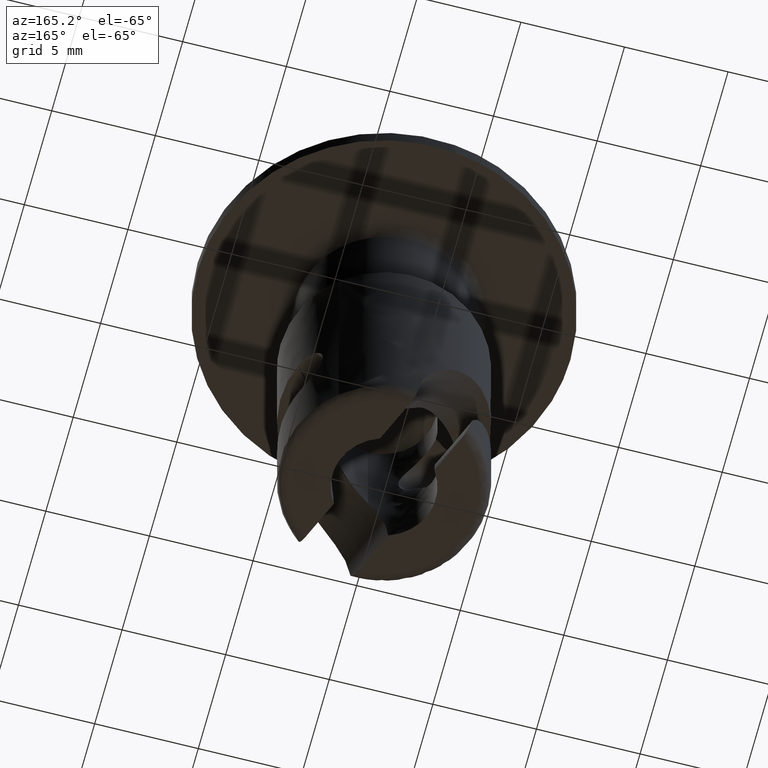
[diagram: clean part render]
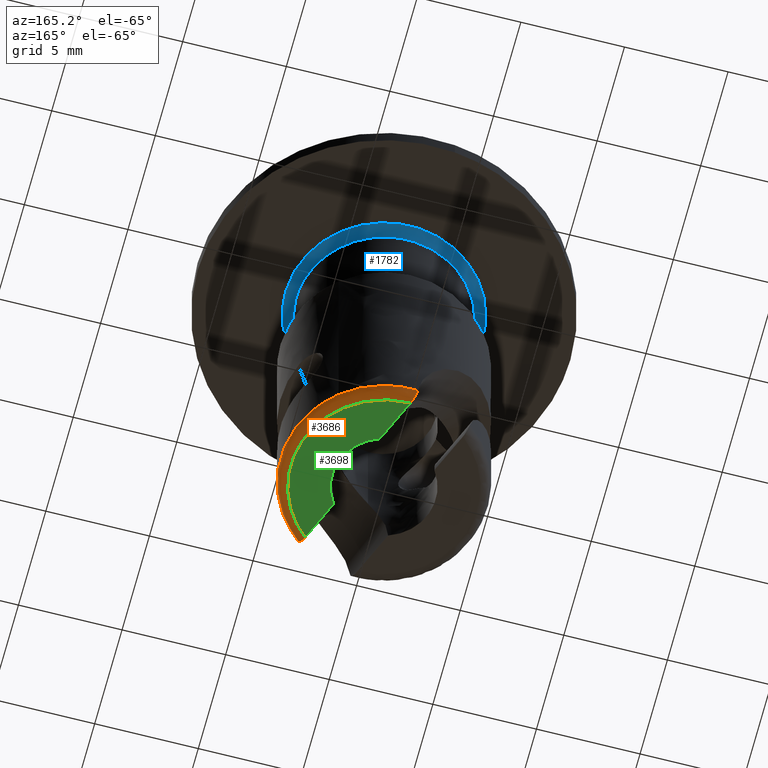
[diagram: same view with three faces highlighted in distinct colors, each labeled with its STEP entity id]
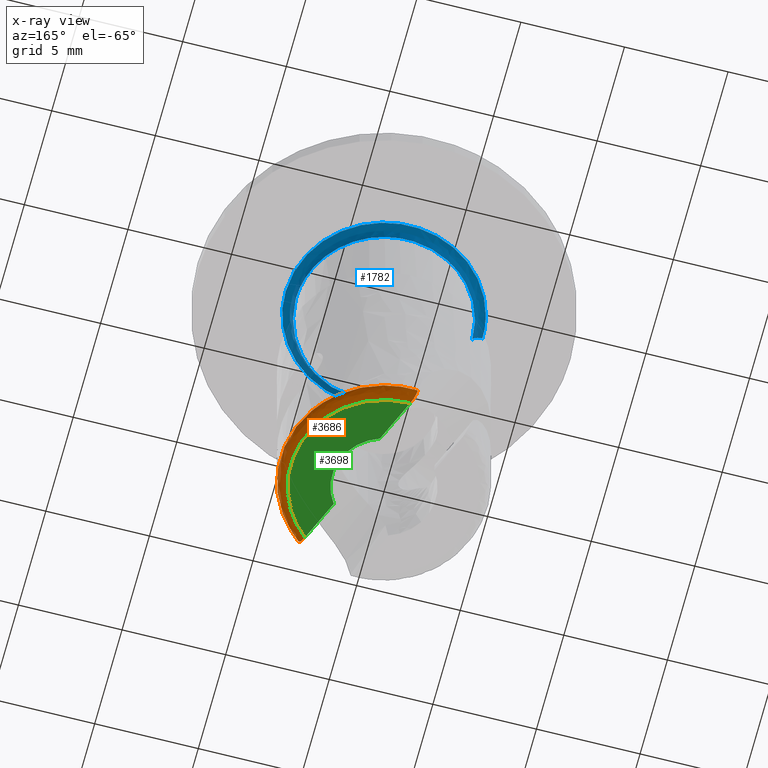
[diagram: x-ray of the same camera — body ghosted, the three highlighted faces saturated]
A machine part, auxiliary view with three faces highlighted in distinct colors.
The next image is the same camera in x-ray (body ghosted, the three faces saturated) — at least one of them is partly hidden behind the body in this view.
Their STEP definitions:

[orange] entity #3686 — the highlighted face is a freeform B-spline surface patch.
#984=CARTESIAN_POINT('',(3.124494516365015,-3.903528406096845,-18.500000000000000));
#985=VERTEX_POINT('',#984);
#1001=CARTESIAN_POINT('',(3.441768623521589,-3.626875892846059,-18.500000000000000));
#1002=VERTEX_POINT('',#1001);
#1003=CARTESIAN_POINT('',(3.124494516365013,-3.903528406096843,-18.500000000000000));
#1004=CARTESIAN_POINT('',(3.288959588975710,-3.771885911398178,-18.500000000000004));
#1005=CARTESIAN_POINT('',(3.441768623521589,-3.626875892846058,-18.500000000000000));
#1013=(BOUNDED_CURVE()B_SPLINE_CURVE(2,(#1003,#1004,#1005),.UNSPECIFIED.,.F.,.U.)B_SPLINE_CURVE_WITH_KNOTS((3,3),(0.0,0.035159461811419),.UNSPECIFIED.)CURVE()GEOMETRIC_REPRESENTATION_ITEM()RATIONAL_B_SPLINE_CURVE((1.0,0.986404531614961,0.974721100635891))REPRESENTATION_ITEM(''));
#1014=EDGE_CURVE('',#985,#1002,#1013,.T.);
#1046=CARTESIAN_POINT('',(3.205213124924041,3.837526393891474,-18.500000000000000));
#1047=VERTEX_POINT('',#1046);
#1048=CARTESIAN_POINT('',(-0.313195308170528,4.990181229067730,-18.500000000000000));
#1049=VERTEX_POINT('',#1048);
#1050=CARTESIAN_POINT('',(3.205213124924040,3.837526393891474,-18.500000000000004));
#1051=CARTESIAN_POINT('',(1.675712964474658,5.115009709393367,-18.500000000000000));
#1052=CARTESIAN_POINT('',(-0.313195308170527,4.990181229067735,-18.500000000000000));
#1060=(BOUNDED_CURVE()B_SPLINE_CURVE(2,(#1050,#1051,#1052),.UNSPECIFIED.,.F.,.U.)B_SPLINE_CURVE_WITH_KNOTS((3,3),(0.701706621458012,1.0),.UNSPECIFIED.)CURVE()GEOMETRIC_REPRESENTATION_ITEM()RATIONAL_B_SPLINE_CURVE((0.906937285704358,0.884655851128052,1.0))REPRESENTATION_ITEM(''));
#1061=EDGE_CURVE('',#1047,#1049,#1060,.T.);
#1351=CARTESIAN_POINT('',(3.441768623521589,-3.626875892846058,-18.500000000000000));
#1352=CARTESIAN_POINT('',(5.871267993779972,-1.321372492551336,-18.499999999999996));
#1353=CARTESIAN_POINT('',(4.663729042102849,1.802673409646474,-18.500000000000000));
#1354=CARTESIAN_POINT('',(4.197570591971286,3.008680382660280,-18.499999999999996));
#1355=CARTESIAN_POINT('',(3.205213124924040,3.837526393891474,-18.500000000000004));
#1363=(BOUNDED_CURVE()B_SPLINE_CURVE(2,(#1351,#1352,#1353,#1354,#1355),.UNSPECIFIED.,.F.,.U.)B_SPLINE_CURVE_WITH_KNOTS((3,2,3),(0.035159461811419,0.500000000000000,0.701706621458012),.UNSPECIFIED.)CURVE()GEOMETRIC_REPRESENTATION_ITEM()RATIONAL_B_SPLINE_CURVE((0.974721100635891,0.820255359000559,1.0,0.922004039487468,0.906937285704358))REPRESENTATION_ITEM(''));
#1364=EDGE_CURVE('',#1002,#1047,#1363,.T.);
#2483=CARTESIAN_POINT('',(-0.085926746010043,4.499179546797280,-19.0));
#2484=VERTEX_POINT('',#2483);
#2485=CARTESIAN_POINT('',(-0.085926746010043,4.499179546797280,-19.0));
#2486=CARTESIAN_POINT('',(-0.099194621547314,4.530436716631356,-19.000000000000028));
#2487=CARTESIAN_POINT('',(-0.112354986435309,4.561453441815378,-18.997048296491059));
#2488=CARTESIAN_POINT('',(-0.138478234853059,4.622989313843970,-18.985146117599680));
#2489=CARTESIAN_POINT('',(-0.151521887195154,4.653697536132278,-18.976062718069979));
#2490=CARTESIAN_POINT('',(-0.176424438465574,4.712117838628803,-18.952348155842440));
#2491=CARTESIAN_POINT('',(-0.188406280573396,4.740120921867622,-18.937701950207629));
#2492=CARTESIAN_POINT('',(-0.211493051025689,4.793580452211522,-18.902621870960481));
#2493=CARTESIAN_POINT('',(-0.222611230146577,4.819056779945024,-18.882055057046180));
#2494=CARTESIAN_POINT('',(-0.243052632517192,4.865004369988509,-18.836712412651320));
#2495=CARTESIAN_POINT('',(-0.252513708333434,4.885799521853064,-18.811761190461851));
#2496=CARTESIAN_POINT('',(-0.265603846995205,4.913513731192731,-18.770739657252069));
#2497=CARTESIAN_POINT('',(-0.269787602084606,4.922175461668958,-18.756425650271002));
#2498=CARTESIAN_POINT('',(-0.277595678438668,4.937892654581577,-18.727244305891318));
#2499=CARTESIAN_POINT('',(-0.281246845126907,4.945006087934380,-18.712299310660288));
#2500=CARTESIAN_POINT('',(-0.291468348587917,4.964122229638018,-18.666411702871020));
#2501=CARTESIAN_POINT('',(-0.297337216187183,4.973954245740749,-18.634276952589730));
#2502=CARTESIAN_POINT('',(-0.306985499787269,4.987129683534116,-18.567659002003388));
#2503=CARTESIAN_POINT('',(-0.310656887699815,4.990340546203750,-18.534002196224570));
#2504=CARTESIAN_POINT('',(-0.313195308170528,4.990181229067730,-18.500000000000000));
#2505=B_SPLINE_CURVE_WITH_KNOTS('',3,(#2485,#2486,#2487,#2488,#2489,#2490,#2491,#2492,#2493,#2494,#2495,#2496,#2497,#2498,#2499,#2500,#2501,#2502,#2503,#2504),.UNSPECIFIED.,.F.,.U.,(4,2,2,2,2,2,2,2,2,4),(0.0,0.124999999999999,0.249999999999998,0.374999999999997,0.499999999999996,0.624999999999995,0.687500000000000,0.750000000000005,0.875000000000002,1.0),.UNSPECIFIED.);
#2506=EDGE_CURVE('',#2484,#1049,#2505,.T.);
#3300=CARTESIAN_POINT('',(2.896918637067870,-3.443524697457790,-18.999991999999999));
#3301=VERTEX_POINT('',#3300);
#3307=CARTESIAN_POINT('',(2.896918637067870,-3.443524697457790,-18.999991999999999));
#3308=CARTESIAN_POINT('',(2.909889189152438,-3.474081414632380,-18.999992265028219));
#3309=CARTESIAN_POINT('',(2.923021818620198,-3.505054243283523,-18.996923436703231));
#3310=CARTESIAN_POINT('',(2.948669394379714,-3.565505339520925,-18.984704274738331));
#3311=CARTESIAN_POINT('',(2.961139402139915,-3.594877037636146,-18.975653899472690));
#3312=CARTESIAN_POINT('',(2.985478925744812,-3.651857335019900,-18.951642997388500));
#3313=CARTESIAN_POINT('',(2.997464634078880,-3.679730213676146,-18.936460478975540));
#3314=CARTESIAN_POINT('',(3.020039815790713,-3.731364118565590,-18.901022037858372));
#3315=CARTESIAN_POINT('',(3.030708789894043,-3.755318708838515,-18.880759909834332));
#3316=CARTESIAN_POINT('',(3.050972473009434,-3.799267783931313,-18.834956782581099));
#3317=CARTESIAN_POINT('',(3.060580134550247,-3.819256598020190,-18.809254771004301));
#3318=CARTESIAN_POINT('',(3.077944861990773,-3.853009863340513,-18.754790754367189));
#3319=CARTESIAN_POINT('',(3.085833930738278,-3.867073432647826,-18.725769489364630));
#3320=CARTESIAN_POINT('',(3.100122992330495,-3.889144432672481,-18.663939832964559));
#3321=CARTESIAN_POINT('',(3.106329370127066,-3.896824809239544,-18.631912473689979));
#3322=CARTESIAN_POINT('',(3.116819992628848,-3.905331020845692,-18.566880021220388));
#3323=CARTESIAN_POINT('',(3.121168416493807,-3.906190710203219,-18.533434311206388));
#3324=CARTESIAN_POINT('',(3.124494516365015,-3.903528406096845,-18.500000000000000));
#3325=B_SPLINE_CURVE_WITH_KNOTS('',3,(#3307,#3308,#3309,#3310,#3311,#3312,#3313,#3314,#3315,#3316,#3317,#3318,#3319,#3320,#3321,#3322,#3323,#3324),.UNSPECIFIED.,.F.,.U.,(4,2,2,2,2,2,2,2,4),(0.0,0.125000000000000,0.250000000000000,0.375000000000000,0.500000000000000,0.625000000000000,0.750000000000000,0.875000000000000,1.0),.UNSPECIFIED.);
#3326=EDGE_CURVE('',#3301,#985,#3325,.T.);
#3641=CARTESIAN_POINT('',(2.346015980786564,-3.799276134127239,-18.998789669196587));
#3642=CARTESIAN_POINT('',(5.488217090172582,-1.858997576522931,-18.998789669196583));
#3643=CARTESIAN_POINT('',(4.171994792628351,1.591461459079889,-18.998789669196587));
#3644=CARTESIAN_POINT('',(2.846845264593348,5.065323109246577,-18.998789669196594));
#3645=CARTESIAN_POINT('',(-0.809564673295674,4.391229345548514,-18.998789669196579));
#3646=CARTESIAN_POINT('',(2.647350392702872,-4.287274787572496,-19.038768798715648));
#3647=CARTESIAN_POINT('',(6.193152044955675,-2.097776828694763,-19.038768798715644));
#3648=CARTESIAN_POINT('',(4.707867356008363,1.795876990255650,-19.038768798715644));
#3649=CARTESIAN_POINT('',(3.212508776968633,5.715939376480680,-19.038768798715640));
#3650=CARTESIAN_POINT('',(-0.913549342084665,4.955261527454988,-19.038768798715655));
#3651=CARTESIAN_POINT('',(2.626345605906856,-4.253258401567412,-18.465231416515277));
#3652=CARTESIAN_POINT('',(6.144013918526255,-2.081132505693995,-18.465231416515291));
#3653=CARTESIAN_POINT('',(4.670513875959234,1.781628021401294,-18.465231416515287));
#3654=CARTESIAN_POINT('',(3.187019872240889,5.670587583128026,-18.465231416515287));
#3655=CARTESIAN_POINT('',(-0.906300997018209,4.915945155814272,-18.465231416515294));
#3663=(BOUNDED_SURFACE()B_SPLINE_SURFACE(2,2,((#3641,#3646,#3651),(#3642,#3647,#3652),(#3643,#3648,#3653),(#3644,#3649,#3654),(#3645,#3650,#3655)),.UNSPECIFIED.,.F.,.F.,.U.)B_SPLINE_SURFACE_WITH_KNOTS((3,2,3),(3,3),(0.0,7.197400778158996,14.431859328767439),(0.0,0.911187226123451),.UNSPECIFIED.)GEOMETRIC_REPRESENTATION_ITEM()RATIONAL_B_SPLINE_SURFACE(((0.895007357557586,0.587325983234991,0.895007222299300),(0.698970724295153,0.458681891754963,0.698970618662968),(0.919258322177741,0.603240066532360,0.919258183254520),(0.697836513775636,0.457937594735564,0.697836408314859),(0.897037089934965,0.588657943865461,0.897036954369935)))REPRESENTATION_ITEM('')SURFACE());
#3664=CARTESIAN_POINT('',(-0.085926746010043,4.499179546797280,-19.0));
#3665=CARTESIAN_POINT('',(3.094408215271598,4.559918584863825,-18.999998999330348));
#3666=CARTESIAN_POINT('',(4.212725547690110,1.582069356400305,-18.999995999999999));
#3667=CARTESIAN_POINT('',(5.331042880108620,-1.395779872063211,-18.999993000669654));
#3668=CARTESIAN_POINT('',(2.896918637067870,-3.443524697457790,-18.999991999999999));
#3676=(BOUNDED_CURVE()B_SPLINE_CURVE(2,(#3664,#3665,#3666,#3667,#3668),.UNSPECIFIED.,.F.,.U.)B_SPLINE_CURVE_WITH_KNOTS((3,2,3),(0.0,0.500000000000000,1.0),.UNSPECIFIED.)CURVE()GEOMETRIC_REPRESENTATION_ITEM()RATIONAL_B_SPLINE_CURVE((1.0,0.816587725262943,1.0,0.816587725262943,1.0))REPRESENTATION_ITEM(''));
#3677=EDGE_CURVE('',#2484,#3301,#3676,.T.);
#3678=ORIENTED_EDGE('',*,*,#3677,.F.);
#3679=ORIENTED_EDGE('',*,*,#2506,.T.);
#3680=ORIENTED_EDGE('',*,*,#1061,.F.);
#3681=ORIENTED_EDGE('',*,*,#1364,.F.);
#3682=ORIENTED_EDGE('',*,*,#1014,.F.);
#3683=ORIENTED_EDGE('',*,*,#3326,.F.);
#3684=EDGE_LOOP('',(#3678,#3679,#3680,#3681,#3682,#3683));
#3685=FACE_OUTER_BOUND('',#3684,.T.);
#3686=ADVANCED_FACE('',(#3685),#3663,.T.);

[blue] entity #1782 — the highlighted face is a freeform B-spline surface patch.
#100=CARTESIAN_POINT('',(2.345730469624330,-3.544015880871836,-0.499999999999945));
#101=VERTEX_POINT('',#100);
#107=CARTESIAN_POINT('',(-1.501533358306147,-3.975914683930461,-0.499999999903631));
#108=VERTEX_POINT('',#107);
#109=CARTESIAN_POINT('',(2.345730469624330,-3.544015880871836,-0.499999999999945));
#110=CARTESIAN_POINT('',(1.279103692920481,-4.250000000000001,-0.499999999999945));
#111=CARTESIAN_POINT('',(0.0,-4.250000000000000,-0.499999999999945));
#112=CARTESIAN_POINT('',(-0.775782027653516,-4.250000000000000,-0.499999999999945));
#113=CARTESIAN_POINT('',(-1.501533358306146,-3.975914683930461,-0.499999999903631));
#121=(BOUNDED_CURVE()B_SPLINE_CURVE(2,(#109,#110,#111,#112,#113),.UNSPECIFIED.,.F.,.U.)B_SPLINE_CURVE_WITH_KNOTS((3,2,3),(0.155387389248463,0.250000000000000,0.310000000000057),.UNSPECIFIED.)CURVE()GEOMETRIC_REPRESENTATION_ITEM()RATIONAL_B_SPLINE_CURVE((0.862207972115780,0.889154431586553,1.0,0.929705627484704,0.893152553776783))REPRESENTATION_ITEM(''));
#122=EDGE_CURVE('',#101,#108,#121,.T.);
#124=CARTESIAN_POINT('',(-4.249999999999999,2.218537E-016,-0.499999999905596));
#125=VERTEX_POINT('',#124);
#139=CARTESIAN_POINT('',(-2.139201558421469,3.672372079793440,-0.499999999987122));
#140=VERTEX_POINT('',#139);
#141=CARTESIAN_POINT('',(-4.249999999999999,2.218537E-016,-0.499999999905596));
#142=CARTESIAN_POINT('',(-4.250000000000000,2.442806803159837,-0.499999999959826));
#143=CARTESIAN_POINT('',(-2.139201558421469,3.672372079793441,-0.499999999987122));
#151=(BOUNDED_CURVE()B_SPLINE_CURVE(2,(#141,#142,#143),.UNSPECIFIED.,.F.,.U.)B_SPLINE_CURVE_WITH_KNOTS((3,3),(0.500000000000000,0.664136883520065),.UNSPECIFIED.)CURVE()GEOMETRIC_REPRESENTATION_ITEM()RATIONAL_B_SPLINE_CURVE((1.0,0.807701679439198,0.867909335222336))REPRESENTATION_ITEM(''));
#152=EDGE_CURVE('',#125,#140,#151,.T.);
#198=CARTESIAN_POINT('',(4.250000000000000,0.0,-0.499999999999945));
#199=VERTEX_POINT('',#198);
#200=CARTESIAN_POINT('',(-2.139201558421469,3.672372079793440,-0.499999999987122));
#201=CARTESIAN_POINT('',(-1.147585954960569,4.250000000000000,-0.499999999999945));
#202=CARTESIAN_POINT('',(0.0,4.250000000000000,-0.499999999999945));
#203=CARTESIAN_POINT('',(4.249999999999999,4.249999999999999,-0.499999999999945));
#204=CARTESIAN_POINT('',(4.250000000000000,0.0,-0.499999999999945));
#212=(BOUNDED_CURVE()B_SPLINE_CURVE(2,(#200,#201,#202,#203,#204),.UNSPECIFIED.,.F.,.U.)B_SPLINE_CURVE_WITH_KNOTS((3,2,3),(0.664136883520064,0.750000000000000,1.0),.UNSPECIFIED.)CURVE()GEOMETRIC_REPRESENTATION_ITEM()RATIONAL_B_SPLINE_CURVE((0.867909335222335,0.899405101747349,1.0,0.707106781186548,1.0))REPRESENTATION_ITEM(''));
#213=EDGE_CURVE('',#140,#199,#212,.T.);
#215=CARTESIAN_POINT('',(4.250000000000000,0.0,-0.499999999999945));
#216=CARTESIAN_POINT('',(4.250000000000001,-2.283608701579391,-0.499999999999945));
#217=CARTESIAN_POINT('',(2.345730469624330,-3.544015880871836,-0.499999999999945));
#225=(BOUNDED_CURVE()B_SPLINE_CURVE(2,(#215,#216,#217),.UNSPECIFIED.,.F.,.U.)B_SPLINE_CURVE_WITH_KNOTS((3,3),(0.0,0.155387389248463),.UNSPECIFIED.)CURVE()GEOMETRIC_REPRESENTATION_ITEM()RATIONAL_B_SPLINE_CURVE((1.0,0.817952349599995,0.862207972115780))REPRESENTATION_ITEM(''));
#226=EDGE_CURVE('',#199,#101,#225,.T.);
#1679=CARTESIAN_POINT('',(-1.690435219881707,-4.476108489888264,-0.001203830852631));
#1680=CARTESIAN_POINT('',(-0.873380038639573,-4.784675375181300,-0.001203830852631));
#1681=CARTESIAN_POINT('',(-5.859344E-016,-4.784675375181302,-0.001203830852631));
#1682=CARTESIAN_POINT('',(4.784675375181299,-4.784675375181301,-0.001203830852631));
#1683=CARTESIAN_POINT('',(4.784675375181302,-8.789016E-016,-0.001203830852631));
#1684=CARTESIAN_POINT('',(4.784675375181301,4.784675375181299,-0.001203830852631));
#1685=CARTESIAN_POINT('',(1.171869E-015,4.784675375181302,-0.001203830852631));
#1686=CARTESIAN_POINT('',(-4.784675375181299,4.784675375181301,-0.001203830852631));
#1687=CARTESIAN_POINT('',(-4.784675375181302,1.464836E-015,-0.001203830852631));
#1688=CARTESIAN_POINT('',(-1.487800633503684,-3.939551760731182,0.038667944957088));
#1689=CARTESIAN_POINT('',(-0.768686879860654,-4.211130347131767,0.038667944957088));
#1690=CARTESIAN_POINT('',(-5.156977E-016,-4.211130347131769,0.038667944957088));
#1691=CARTESIAN_POINT('',(4.211130347131768,-4.211130347131768,0.038667944957088));
#1692=CARTESIAN_POINT('',(4.211130347131769,-7.735465E-016,0.038667944957088));
#1693=CARTESIAN_POINT('',(4.211130347131768,4.211130347131768,0.038667944957088));
#1694=CARTESIAN_POINT('',(1.031395E-015,4.211130347131769,0.038667944957088));
#1695=CARTESIAN_POINT('',(-4.211130347131768,4.211130347131768,0.038667944957088));
#1696=CARTESIAN_POINT('',(-4.211130347131769,1.289244E-015,0.038667944957088));
#1697=CARTESIAN_POINT('',(-1.501963273030173,-3.977053056420102,-0.534862115431952));
#1698=CARTESIAN_POINT('',(-0.776004147337932,-4.251216847810988,-0.534862115431952));
#1699=CARTESIAN_POINT('',(-5.206067E-016,-4.251216847810989,-0.534862115431952));
#1700=CARTESIAN_POINT('',(4.251216847810988,-4.251216847810988,-0.534862115431952));
#1701=CARTESIAN_POINT('',(4.251216847810989,-7.809101E-016,-0.534862115431952));
#1702=CARTESIAN_POINT('',(4.251216847810988,4.251216847810988,-0.534862115431952));
#1703=CARTESIAN_POINT('',(1.041213E-015,4.251216847810989,-0.534862115431952));
#1704=CARTESIAN_POINT('',(-4.251216847810987,4.251216847810988,-0.534862115431952));
#1705=CARTESIAN_POINT('',(-4.251216847810989,1.301517E-015,-0.534862115431952));
#1713=(BOUNDED_SURFACE()B_SPLINE_SURFACE(2,2,((#1679,#1688,#1697),(#1680,#1689,#1698),(#1681,#1690,#1699),(#1682,#1691,#1700),(#1683,#1692,#1701),(#1684,#1693,#1702),(#1685,#1694,#1703),(#1686,#1695,#1704),(#1687,#1696,#1705)),.UNSPECIFIED.,.F.,.F.,.U.)B_SPLINE_SURFACE_WITH_KNOTS((3,2,2,2,3),(3,3),(0.0,1.902602334674567,9.830112062485254,17.757621790295939,25.685131518106630),(0.0,0.911185297282868),.UNSPECIFIED.)GEOMETRIC_REPRESENTATION_ITEM()RATIONAL_B_SPLINE_SURFACE(((0.812829786868181,0.531919612532274,0.808327349069350),(0.846095578905325,0.553688902360042,0.841408874779280),(0.910068255899832,0.595552921259597,0.905027193452222),(0.643515435089385,0.421119509178119,0.639950865648296),(0.910068255899832,0.595552921259597,0.905027193452222),(0.643515435089385,0.421119509178119,0.639950865648296),(0.910068255899832,0.595552921259597,0.905027193452222),(0.643515435089385,0.421119509178119,0.639950865648296),(0.910068255899832,0.595552921259597,0.905027193452222)))REPRESENTATION_ITEM('')SURFACE());
#1714=ORIENTED_EDGE('',*,*,#226,.F.);
#1715=ORIENTED_EDGE('',*,*,#213,.F.);
#1716=ORIENTED_EDGE('',*,*,#152,.F.);
#1717=CARTESIAN_POINT('',(-4.749999999964296,1.109309E-016,1.369639E-014));
#1718=VERTEX_POINT('',#1717);
#1719=CARTESIAN_POINT('',(-4.749999999964296,1.109309E-016,1.369639E-014));
#1720=CARTESIAN_POINT('',(-4.250000000188695,4.424206E-016,-1.427588E-010));
#1721=CARTESIAN_POINT('',(-4.249999999999999,2.218537E-016,-0.499999999905596));
#1729=(BOUNDED_CURVE()B_SPLINE_CURVE(2,(#1719,#1720,#1721),.UNSPECIFIED.,.F.,.U.)B_SPLINE_CURVE_WITH_KNOTS((3,3),(-1.726807299221834,-0.285995334428511),.UNSPECIFIED.)CURVE()GEOMETRIC_REPRESENTATION_ITEM()RATIONAL_B_SPLINE_CURVE((0.882788776113661,0.622603437860294,0.878205638918403))REPRESENTATION_ITEM(''));
#1730=EDGE_CURVE('',#1718,#125,#1729,.T.);
#1731=ORIENTED_EDGE('',*,*,#1730,.F.);
#1732=CARTESIAN_POINT('',(4.750000000000000,0.0,0.0));
#1733=VERTEX_POINT('',#1732);
#1734=CARTESIAN_POINT('',(4.750000000000000,0.0,0.0));
#1735=CARTESIAN_POINT('',(4.750000000000000,4.750000000000000,0.0));
#1736=CARTESIAN_POINT('',(0.0,4.750000000000000,0.0));
#1737=CARTESIAN_POINT('',(-4.750000000000000,4.750000000000000,0.0));
#1738=CARTESIAN_POINT('',(-4.749999999964296,1.109309E-016,1.369639E-014));
#1746=(BOUNDED_CURVE()B_SPLINE_CURVE(2,(#1734,#1735,#1736,#1737,#1738),.UNSPECIFIED.,.F.,.U.)B_SPLINE_CURVE_WITH_KNOTS((3,2,3),(0.0,0.250000000000000,0.500000000000000),.UNSPECIFIED.)CURVE()GEOMETRIC_REPRESENTATION_ITEM()RATIONAL_B_SPLINE_CURVE((1.0,0.707106781186548,1.0,0.707106781186548,1.0))REPRESENTATION_ITEM(''));
#1747=EDGE_CURVE('',#1733,#1718,#1746,.T.);
#1748=ORIENTED_EDGE('',*,*,#1747,.F.);
#1749=CARTESIAN_POINT('',(-1.678184341539736,-4.443669352321775,2.738718E-014));
#1750=VERTEX_POINT('',#1749);
#1751=CARTESIAN_POINT('',(-1.678184341539735,-4.443669352321776,2.738718E-014));
#1752=CARTESIAN_POINT('',(-0.867050501513631,-4.750000000000000,0.0));
#1753=CARTESIAN_POINT('',(0.0,-4.750000000000000,0.0));
#1754=CARTESIAN_POINT('',(4.750000000000000,-4.750000000000000,0.0));
#1755=CARTESIAN_POINT('',(4.750000000000000,0.0,0.0));
#1763=(BOUNDED_CURVE()B_SPLINE_CURVE(2,(#1751,#1752,#1753,#1754,#1755),.UNSPECIFIED.,.F.,.U.)B_SPLINE_CURVE_WITH_KNOTS((3,2,3),(0.689999999998751,0.750000000000000,1.0),.UNSPECIFIED.)CURVE()GEOMETRIC_REPRESENTATION_ITEM()RATIONAL_B_SPLINE_CURVE((0.893152553775331,0.929705627483308,1.0,0.707106781186548,1.0))REPRESENTATION_ITEM(''));
#1764=EDGE_CURVE('',#1750,#1733,#1763,.T.);
#1765=ORIENTED_EDGE('',*,*,#1764,.F.);
#1766=CARTESIAN_POINT('',(-1.678184341539736,-4.443669352321775,2.738718E-014));
#1767=CARTESIAN_POINT('',(-1.501533358373482,-3.975914684110939,-6.414214E-010));
#1768=CARTESIAN_POINT('',(-1.501533358306147,-3.975914683930460,-0.499999999903631));
#1776=(BOUNDED_CURVE()B_SPLINE_CURVE(2,(#1766,#1767,#1768),.UNSPECIFIED.,.F.,.U.)B_SPLINE_CURVE_WITH_KNOTS((3,3),(-1.726807298203103,-0.285995334436501),.UNSPECIFIED.)CURVE()GEOMETRIC_REPRESENTATION_ITEM()RATIONAL_B_SPLINE_CURVE((0.788465049502841,0.556079850677873,0.784371609138672))REPRESENTATION_ITEM(''));
#1777=EDGE_CURVE('',#1750,#108,#1776,.T.);
#1778=ORIENTED_EDGE('',*,*,#1777,.T.);
#1779=ORIENTED_EDGE('',*,*,#122,.F.);
#1780=EDGE_LOOP('',(#1714,#1715,#1716,#1731,#1748,#1765,#1778,#1779));
#1781=FACE_OUTER_BOUND('',#1780,.T.);
#1782=ADVANCED_FACE('',(#1781),#1713,.F.);

[green] entity #3698 — the highlighted face is a freeform B-spline surface patch.
#485=CARTESIAN_POINT('',(0.821620629966657,2.361130987559410,-18.999991999999999));
#486=VERTEX_POINT('',#485);
#510=CARTESIAN_POINT('',(2.045401301169760,-1.437474677679406,-18.999991999999999));
#511=VERTEX_POINT('',#510);
#512=CARTESIAN_POINT('',(2.045401301169760,-1.437474677679406,-18.999991999999999));
#513=CARTESIAN_POINT('',(2.761412070532111,-0.418653702509701,-18.999991999999995));
#514=CARTESIAN_POINT('',(2.379559821214619,0.766612703206290,-18.999991999999999));
#515=CARTESIAN_POINT('',(1.997707571897127,1.951879108922280,-18.999991999999995));
#516=CARTESIAN_POINT('',(0.821620629966657,2.361130987559410,-18.999991999999999));
#524=(BOUNDED_CURVE()B_SPLINE_CURVE(2,(#512,#513,#514,#515,#516),.UNSPECIFIED.,.F.,.U.)B_SPLINE_CURVE_WITH_KNOTS((3,2,3),(0.0,0.500000000000000,1.0),.UNSPECIFIED.)CURVE()GEOMETRIC_REPRESENTATION_ITEM()RATIONAL_B_SPLINE_CURVE((1.0,0.895105287378953,1.0,0.895105287378953,1.0))REPRESENTATION_ITEM(''));
#525=EDGE_CURVE('',#511,#486,#524,.T.);
#2483=CARTESIAN_POINT('',(-0.085926746010043,4.499179546797280,-19.0));
#2484=VERTEX_POINT('',#2483);
#2508=CARTESIAN_POINT('',(-0.085926746010043,4.499179546797280,-19.0));
#2509=CARTESIAN_POINT('',(0.821620629966657,2.361130987559410,-18.999991999999999));
#2510=QUASI_UNIFORM_CURVE('',1,(#2508,#2509),.UNSPECIFIED.,.F.,.U.);
#2511=EDGE_CURVE('',#2484,#486,#2510,.T.);
#3300=CARTESIAN_POINT('',(2.896918637067870,-3.443524697457790,-18.999991999999999));
#3301=VERTEX_POINT('',#3300);
#3302=CARTESIAN_POINT('',(2.896918637067870,-3.443524697457790,-18.999991999999999));
#3303=CARTESIAN_POINT('',(2.045401301169760,-1.437474677679406,-18.999991999999999));
#3304=QUASI_UNIFORM_CURVE('',1,(#3302,#3303),.UNSPECIFIED.,.F.,.U.);
#3305=EDGE_CURVE('',#3301,#511,#3304,.T.);
#3664=CARTESIAN_POINT('',(-0.085926746010043,4.499179546797280,-19.0));
#3665=CARTESIAN_POINT('',(3.094408215271598,4.559918584863825,-18.999998999330348));
#3666=CARTESIAN_POINT('',(4.212725547690110,1.582069356400305,-18.999995999999999));
#3667=CARTESIAN_POINT('',(5.331042880108620,-1.395779872063211,-18.999993000669654));
#3668=CARTESIAN_POINT('',(2.896918637067870,-3.443524697457790,-18.999991999999999));
#3676=(BOUNDED_CURVE()B_SPLINE_CURVE(2,(#3664,#3665,#3666,#3667,#3668),.UNSPECIFIED.,.F.,.U.)B_SPLINE_CURVE_WITH_KNOTS((3,2,3),(0.0,0.500000000000000,1.0),.UNSPECIFIED.)CURVE()GEOMETRIC_REPRESENTATION_ITEM()RATIONAL_B_SPLINE_CURVE((1.0,0.816587725262943,1.0,0.816587725262943,1.0))REPRESENTATION_ITEM(''));
#3677=EDGE_CURVE('',#2484,#3301,#3676,.T.);
#3687=CARTESIAN_POINT('',(-0.314885234735987,-3.840262656126486,-19.0));
#3688=CARTESIAN_POINT('',(4.726785571698652,-3.840262656126486,-19.0));
#3689=CARTESIAN_POINT('',(-0.314885234735987,4.895917221412737,-19.0));
#3690=CARTESIAN_POINT('',(4.726785571698652,4.895917221412737,-19.0));
#3691=B_SPLINE_SURFACE_WITH_KNOTS('',1,1,((#3687,#3689),(#3688,#3690)),.UNSPECIFIED.,.F.,.F.,.U.,(2,2),(2,2),(0.0,5.041670806434640),(0.0,8.736179877539222),.UNSPECIFIED.);
#3692=ORIENTED_EDGE('',*,*,#2511,.F.);
#3693=ORIENTED_EDGE('',*,*,#3677,.T.);
#3694=ORIENTED_EDGE('',*,*,#3305,.T.);
#3695=ORIENTED_EDGE('',*,*,#525,.T.);
#3696=EDGE_LOOP('',(#3692,#3693,#3694,#3695));
#3697=FACE_OUTER_BOUND('',#3696,.T.);
#3698=ADVANCED_FACE('',(#3697),#3691,.F.);